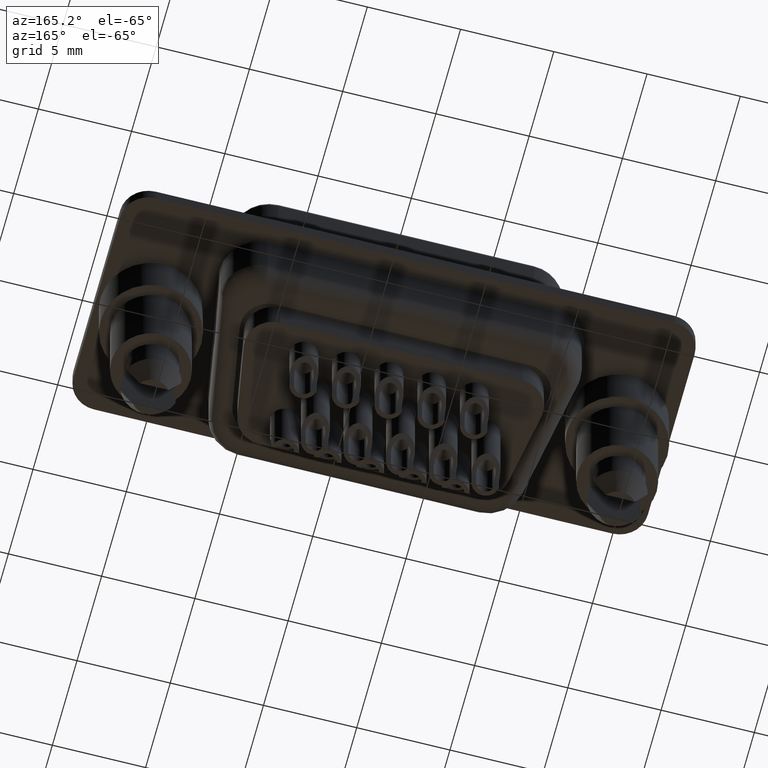
[diagram: clean part render]
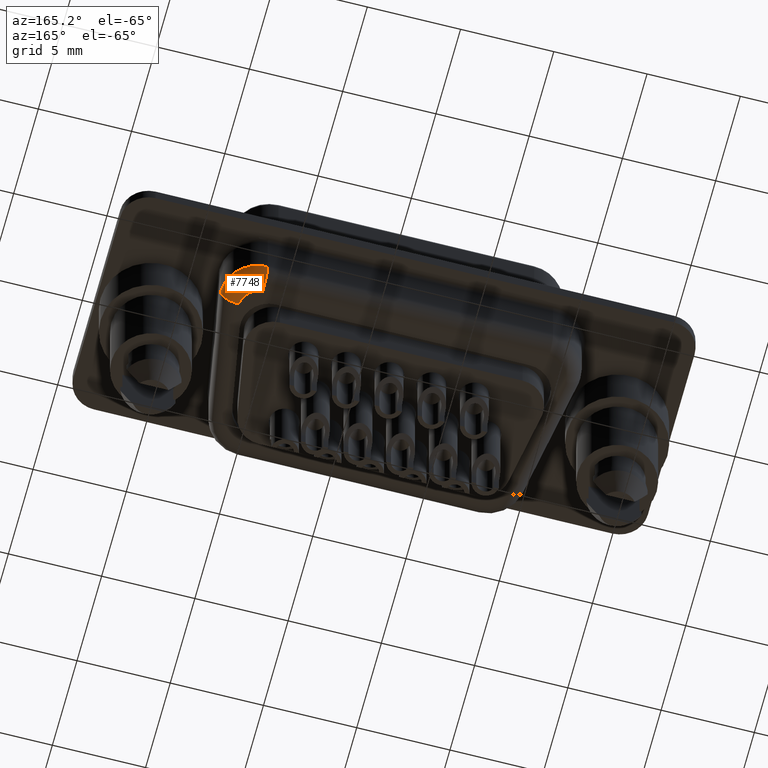
[diagram: same view with one face highlighted and labeled with its STEP entity id]
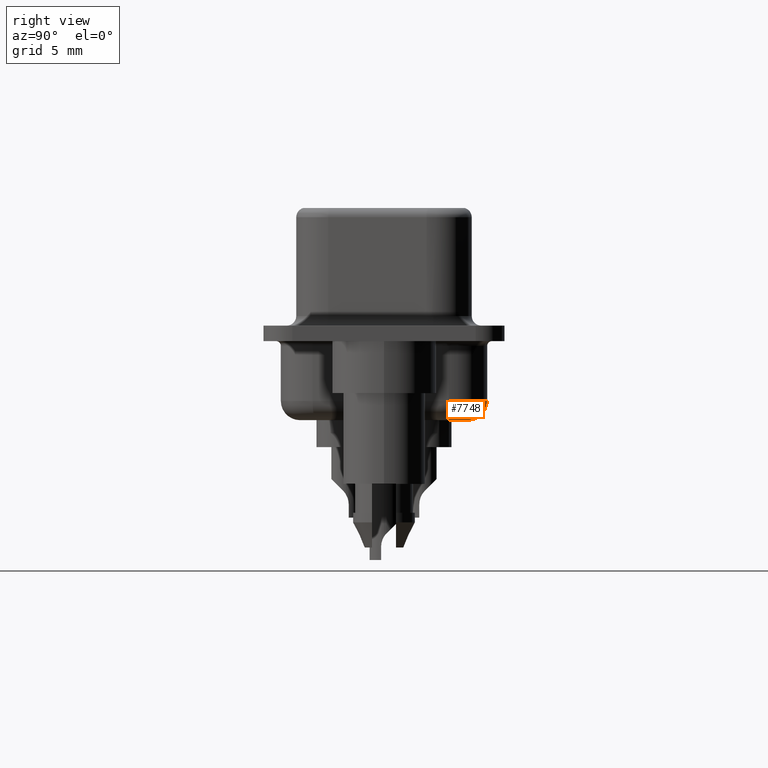
[diagram: same view with one face highlighted and labeled with its STEP entity id]
A machine part, auxiliary view. The second image highlights one B-rep face of the part: STEP entity #7748.
A second angle (right view) of the same face is appended — the face is thin or edge-on in the first view.
In plain terms, the highlighted toroidal blend (fillet) surface has major radius 1 mm and minor (blend) radius 1 mm.
Its self-contained STEP definition (entity closure, byte-faithful):
#1219 = AXIS2_PLACEMENT_3D ( 'NONE', #14898, #6777, #16288 ) ;
#1387 = ORIENTED_EDGE ( 'NONE', *, *, #8176, .F. ) ;
#1672 = VERTEX_POINT ( 'NONE', #6331 ) ;
#2383 = CIRCLE ( 'NONE', #16970, 1.000000000000000000 ) ;
#2469 = EDGE_CURVE ( 'NONE', #15170, #12039, #6671, .T. ) ;
#2575 = ORIENTED_EDGE ( 'NONE', *, *, #3055, .F. ) ;
#3055 = EDGE_CURVE ( 'NONE', #14953, #1672, #6296, .T. ) ;
#3111 = DIRECTION ( 'NONE',  ( 1.000000000000000000, 0.0000000000000000000, 0.0000000000000000000 ) ) ;
#3226 = DIRECTION ( 'NONE',  ( 0.0000000000000000000, -0.0000000000000000000, 1.000000000000000000 ) ) ;
#3309 = CARTESIAN_POINT ( 'NONE',  ( 20.15000000000000200, 3.350000000000004100, -3.499999999999999600 ) ) ;
#4755 = EDGE_CURVE ( 'NONE', #1672, #15170, #2383, .T. ) ;
#5005 = CARTESIAN_POINT ( 'NONE',  ( 22.14999999999999900, 3.350000000000004100, -3.499999999999999600 ) ) ;
#6296 = CIRCLE ( 'NONE', #10702, 1.999999999999998200 ) ;
#6331 = CARTESIAN_POINT ( 'NONE',  ( 20.15000000000000200, 5.350000000000004100, -3.499999999999999600 ) ) ;
#6510 = AXIS2_PLACEMENT_3D ( 'NONE', #15089, #12411, #16479 ) ;
#6671 = CIRCLE ( 'NONE', #7717, 1.000000000000000900 ) ;
#6777 = DIRECTION ( 'NONE',  ( 0.0000000000000000000, -1.000000000000000000, -0.0000000000000000000 ) ) ;
#6983 = CARTESIAN_POINT ( 'NONE',  ( 20.15000000000000200, 4.350000000000004100, -4.500000000000000000 ) ) ;
#7717 = AXIS2_PLACEMENT_3D ( 'NONE', #12284, #12215, #12132 ) ;
#7748 = ADVANCED_FACE ( 'NONE', ( #11606 ), #7955, .T. ) ;
#7955 = TOROIDAL_SURFACE ( 'NONE', #6510, 0.9999999999999995600, 1.000000000000000000 ) ;
#8176 = EDGE_CURVE ( 'NONE', #12039, #14953, #9229, .T. ) ;
#9223 = DIRECTION ( 'NONE',  ( -1.000000000000000000, 0.0000000000000000000, 0.0000000000000000000 ) ) ;
#9229 = CIRCLE ( 'NONE', #1219, 1.000000000000000000 ) ;
#10702 = AXIS2_PLACEMENT_3D ( 'NONE', #3309, #3226, #3111 ) ;
#11198 = DIRECTION ( 'NONE',  ( 0.0000000000000000000, 0.0000000000000000000, 1.000000000000000000 ) ) ;
#11606 = FACE_OUTER_BOUND ( 'NONE', #15786, .T. ) ;
#12039 = VERTEX_POINT ( 'NONE', #16055 ) ;
#12132 = DIRECTION ( 'NONE',  ( 1.000000000000000000, 0.0000000000000000000, 0.0000000000000000000 ) ) ;
#12215 = DIRECTION ( 'NONE',  ( -0.0000000000000000000, 0.0000000000000000000, -1.000000000000000000 ) ) ;
#12284 = CARTESIAN_POINT ( 'NONE',  ( 20.15000000000000200, 3.350000000000004100, -4.500000000000000000 ) ) ;
#12411 = DIRECTION ( 'NONE',  ( 0.0000000000000000000, -0.0000000000000000000, 1.000000000000000000 ) ) ;
#12432 = ORIENTED_EDGE ( 'NONE', *, *, #4755, .F. ) ;
#14029 = ORIENTED_EDGE ( 'NONE', *, *, #2469, .F. ) ;
#14898 = CARTESIAN_POINT ( 'NONE',  ( 21.15000000000000200, 3.350000000000004100, -3.499999999999999600 ) ) ;
#14953 = VERTEX_POINT ( 'NONE', #5005 ) ;
#15089 = CARTESIAN_POINT ( 'NONE',  ( 20.15000000000000200, 3.350000000000004100, -3.499999999999999600 ) ) ;
#15170 = VERTEX_POINT ( 'NONE', #6983 ) ;
#15662 = CARTESIAN_POINT ( 'NONE',  ( 20.15000000000000200, 4.350000000000004100, -3.499999999999999600 ) ) ;
#15786 = EDGE_LOOP ( 'NONE', ( #1387, #14029, #12432, #2575 ) ) ;
#16055 = CARTESIAN_POINT ( 'NONE',  ( 21.15000000000000200, 3.350000000000004100, -4.500000000000000000 ) ) ;
#16288 = DIRECTION ( 'NONE',  ( 0.0000000000000000000, 0.0000000000000000000, -1.000000000000000000 ) ) ;
#16479 = DIRECTION ( 'NONE',  ( 1.000000000000000000, 0.0000000000000000000, 0.0000000000000000000 ) ) ;
#16970 = AXIS2_PLACEMENT_3D ( 'NONE', #15662, #9223, #11198 ) ;